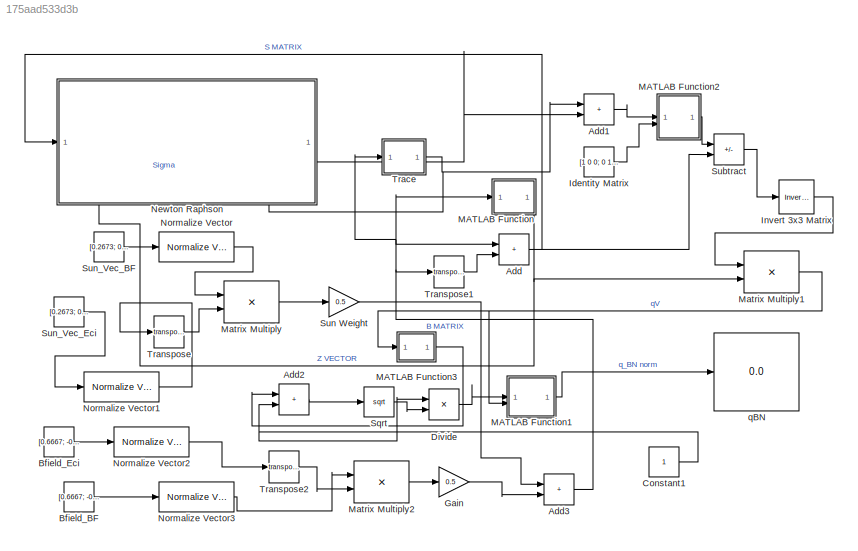
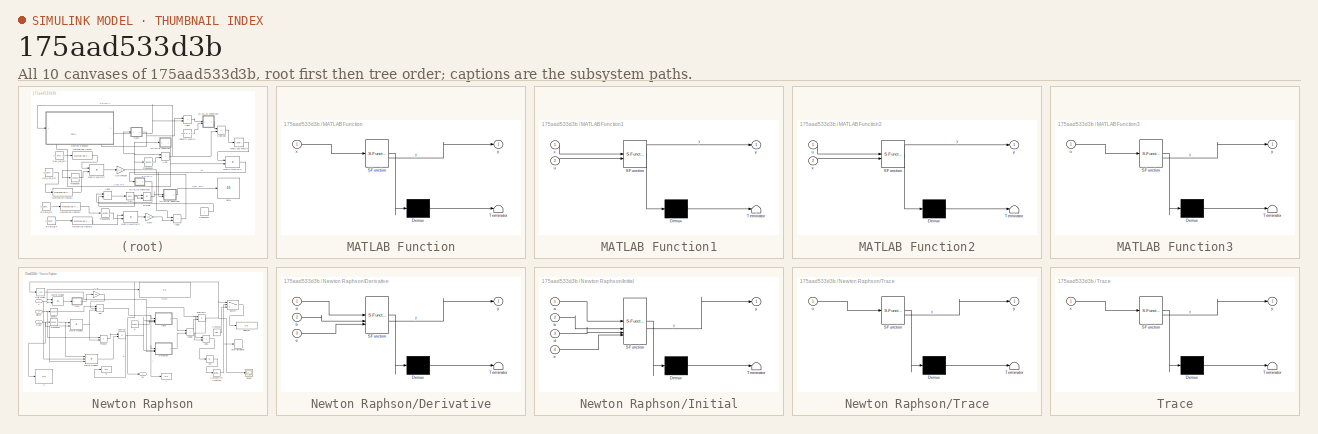
[diagram: thumbnail index - all 10 canvases of the model, root first then tree order]
MODEL slx_175aad533d3b
KIND model
CONFIG AbsTol = auto
CONFIG EnableMultiTasking = off
CONFIG FixedStep = auto
CONFIG MaxStep = auto
CONFIG MinStep = auto
CONFIG RelTol = 1e-3
CONFIG SampleTimeConstraint = Unconstrained
CONFIG SolverName = VariableStepAuto
CONFIG StartTime = 0.0
CONFIG StopTime = 100
BLOCK [Sum] Add
  IconShape = rectangular
BLOCK [Sum] Add1
  IconShape = rectangular
BLOCK [Sum] Add2
  IconShape = rectangular
BLOCK [Sum] Add3
  IconShape = rectangular
BLOCK [Constant] Bfield_BF
  Value = [0.6667; -0.3333; 0.6667]
BLOCK [Constant] Bfield_Eci
  Value = [0.6667; -0.3333; 0.6667]
BLOCK [Constant] Constant1
BLOCK [Product] Divide
  Inputs = */
BLOCK [Gain] Gain
  Gain = 0.5
BLOCK [Constant] Identity Matrix
  Value = [1 0 0; 0 1 0; 0 0 1]
BLOCK [Reference] Invert 3x3 Matrix  REF=aerolibutil/Invert 
3x3 Matrix
  SourceBlock = aerolibutil/Invert \n3x3 Matrix
  SourceType = Invert 3x3 Matrix
BLOCK [SubSystem] MATLAB Function
  ErrorFcn = Stateflow.Translate.translate
  PermitHierarchicalResolution = ExplicitOnly
  SFBlockType = MATLAB Function
  TreatAsAtomicUnit = on
BLOCK [Demux] MATLAB Function/ Demux 
  Outputs = 1
BLOCK [S-Function] MATLAB Function/ SFunction 
  EnableBusSupport = on
  FunctionName = sf_sfun
  PortCounts = [1 2]
  SFcnIsStateOwnerBlock = off
  SFunctionDeploymentMode = off
  Tag = Stateflow S-Function 1
BLOCK [Terminator] MATLAB Function/ Terminator 
BLOCK [Inport] MATLAB Function/x
BLOCK [Outport] MATLAB Function/y
BLOCK [SubSystem] MATLAB Function1
  ErrorFcn = Stateflow.Translate.translate
  PermitHierarchicalResolution = ExplicitOnly
  SFBlockType = MATLAB Function
  TreatAsAtomicUnit = on
BLOCK [Demux] MATLAB Function1/ Demux 
  Outputs = 1
BLOCK [S-Function] MATLAB Function1/ SFunction 
  EnableBusSupport = on
  FunctionName = sf_sfun
  PortCounts = [2 2]
  SFcnIsStateOwnerBlock = off
  SFunctionDeploymentMode = off
  Tag = Stateflow S-Function 3
BLOCK [Terminator] MATLAB Function1/ Terminator 
BLOCK [Inport] MATLAB Function1/u
  Port = 2
BLOCK [Inport] MATLAB Function1/x
BLOCK [Outport] MATLAB Function1/y
BLOCK [SubSystem] MATLAB Function2
  ErrorFcn = Stateflow.Translate.translate
  PermitHierarchicalResolution = ExplicitOnly
  SFBlockType = MATLAB Function
  TreatAsAtomicUnit = on
BLOCK [Demux] MATLAB Function2/ Demux 
  Outputs = 1
BLOCK [S-Function] MATLAB Function2/ SFunction 
  EnableBusSupport = on
  FunctionName = sf_sfun
  PortCounts = [2 2]
  SFcnIsStateOwnerBlock = off
  SFunctionDeploymentMode = off
  Tag = Stateflow S-Function 7
BLOCK [Terminator] MATLAB Function2/ Terminator 
BLOCK [Inport] MATLAB Function2/u
BLOCK [Inport] MATLAB Function2/x
  Port = 2
BLOCK [Outport] MATLAB Function2/y
BLOCK [SubSystem] MATLAB Function3
  ErrorFcn = Stateflow.Translate.translate
  PermitHierarchicalResolution = ExplicitOnly
  SFBlockType = MATLAB Function
  TreatAsAtomicUnit = on
BLOCK [Demux] MATLAB Function3/ Demux 
  Outputs = 1
BLOCK [S-Function] MATLAB Function3/ SFunction 
  EnableBusSupport = on
  FunctionName = sf_sfun
  PortCounts = [1 2]
  SFcnIsStateOwnerBlock = off
  SFunctionDeploymentMode = off
  Tag = Stateflow S-Function 8
BLOCK [Terminator] MATLAB Function3/ Terminator 
BLOCK [Inport] MATLAB Function3/u
BLOCK [Outport] MATLAB Function3/y
BLOCK [Product] Matrix Multiply
  Multiplication = Matrix(*)
BLOCK [Product] Matrix Multiply1
  Multiplication = Matrix(*)
BLOCK [Product] Matrix Multiply2
  Multiplication = Matrix(*)
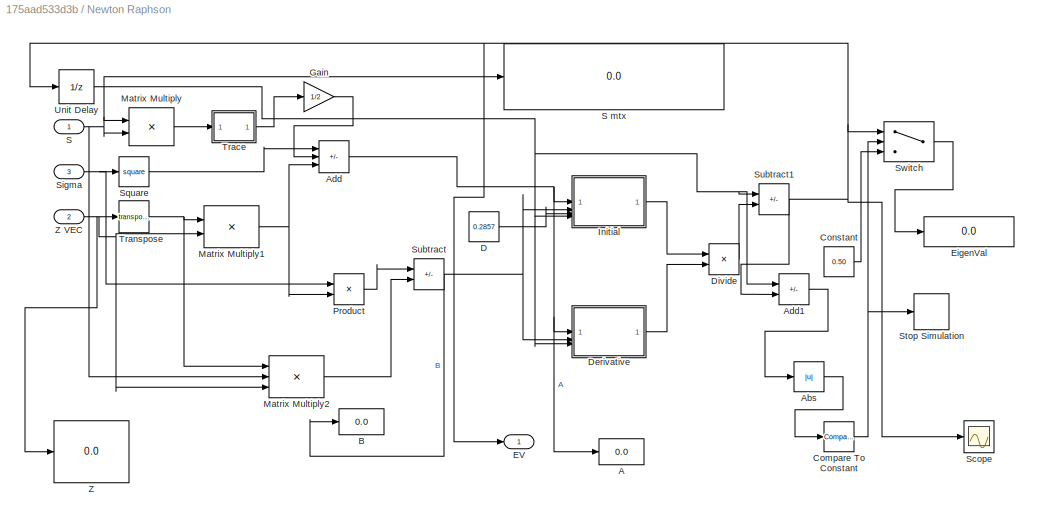
BLOCK [SubSystem] Newton Raphson
  PortSchema = {"entries":[{"content":{"sides":[{"content":{"connectorIds":["In1"]},"type":"ConnectorPlacement.EquallySpacedRectSide","uuid":"e2146f8d-34b9-49a4-aeaf-4a2b3a2e6e4f"},{"content":{"side":"RIGHT"},"type":"ConnectorPlacement.EquallySpacedRectSide","uuid":"5f94a399-f5bb-45cc-8dde-201b399d20f8"},{"content":{"side":"TOP"},"type":"ConnectorPlacement.EquallySpacedRectSide","uuid":"1c1d33a4-7a93-47a3-af10-d...<+360ch>
BLOCK [Display] Newton Raphson/A
  Decimation = 1
BLOCK [Abs] Newton Raphson/Abs
  SaturateOnIntegerOverflow = off
BLOCK [Sum] Newton Raphson/Add
  IconShape = rectangular
  Inputs = +-+
BLOCK [Sum] Newton Raphson/Add1
  IconShape = rectangular
  Inputs = +-
BLOCK [Display] Newton Raphson/B
  Decimation = 1
BLOCK [Reference] Newton Raphson/Compare To Constant  REF=simulink/Logic and Bit
Operations/Compare
To Constant
  SourceBlock = simulink/Logic and Bit\nOperations/Compare\nTo Constant
  SourceType = Compare To Constant
BLOCK [Constant] Newton Raphson/Constant
  Value = 0.50
BLOCK [Constant] Newton Raphson/D
  Value = 0.2857
BLOCK [SubSystem] Newton Raphson/Derivative
  ErrorFcn = Stateflow.Translate.translate
  PermitHierarchicalResolution = ExplicitOnly
  SFBlockType = MATLAB Function
  TreatAsAtomicUnit = on
BLOCK [Demux] Newton Raphson/Derivative/ Demux 
  Outputs = 1
BLOCK [S-Function] Newton Raphson/Derivative/ SFunction 
  EnableBusSupport = on
  FunctionName = sf_sfun
  PortCounts = [3 2]
  SFcnIsStateOwnerBlock = off
  SFunctionDeploymentMode = off
  Tag = Stateflow S-Function 6
BLOCK [Terminator] Newton Raphson/Derivative/ Terminator 
BLOCK [Inport] Newton Raphson/Derivative/a
BLOCK [Inport] Newton Raphson/Derivative/b
  Port = 2
BLOCK [Inport] Newton Raphson/Derivative/e
  Port = 3
BLOCK [Outport] Newton Raphson/Derivative/y
BLOCK [Product] Newton Raphson/Divide
  Inputs = */
BLOCK [Outport] Newton Raphson/EV
BLOCK [Display] Newton Raphson/EigenVal
  Decimation = 1
BLOCK [Gain] Newton Raphson/Gain
  Gain = 1/2
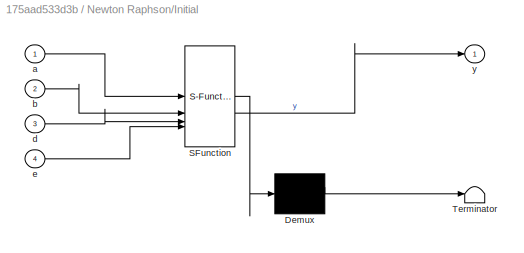
BLOCK [SubSystem] Newton Raphson/Initial
  ErrorFcn = Stateflow.Translate.translate
  PermitHierarchicalResolution = ExplicitOnly
  SFBlockType = MATLAB Function
  TreatAsAtomicUnit = on
BLOCK [Demux] Newton Raphson/Initial/ Demux 
  Outputs = 1
BLOCK [S-Function] Newton Raphson/Initial/ SFunction 
  EnableBusSupport = on
  FunctionName = sf_sfun
  PortCounts = [4 2]
  SFcnIsStateOwnerBlock = off
  SFunctionDeploymentMode = off
  Tag = Stateflow S-Function 5
BLOCK [Terminator] Newton Raphson/Initial/ Terminator 
BLOCK [Inport] Newton Raphson/Initial/a
BLOCK [Inport] Newton Raphson/Initial/b
  Port = 2
BLOCK [Inport] Newton Raphson/Initial/d
  Port = 3
BLOCK [Inport] Newton Raphson/Initial/e
  Port = 4
BLOCK [Outport] Newton Raphson/Initial/y
BLOCK [Product] Newton Raphson/Matrix Multiply
  Multiplication = Matrix(*)
BLOCK [Product] Newton Raphson/Matrix Multiply1
  Multiplication = Matrix(*)
BLOCK [Product] Newton Raphson/Matrix Multiply2
  Inputs = 3
  Multiplication = Matrix(*)
BLOCK [Product] Newton Raphson/Product
BLOCK [Inport] Newton Raphson/S
BLOCK [Display] Newton Raphson/S mtx
  Decimation = 1
BLOCK [Scope] Newton Raphson/Scope
  Floating = off
  NumInputPorts = 1
  ScopeSpecificationString = Simulink.scopes.TimeScopeBlockCfg('CurrentConfiguration', extmgr.ConfigurationSet(extmgr.Configuration('Core','General UI',true),extmgr.Configuration('Core','Source UI',true),extmgr.Configuration('Sources','WiredSimulink',true),extmgr.Configuration('Visuals','Time Domain',true,'SerializedDisplays',{struct('MinYLimReal','0.92259','MaxYLimReal','1.69885','YLabelReal','','MinYLimMag','0.92259','MaxYL...<+1438ch>
BLOCK [Inport] Newton Raphson/Sigma
  Port = 3
BLOCK [Math] Newton Raphson/Square
  Operator = square
BLOCK [Stop] Newton Raphson/Stop Simulation
BLOCK [Sum] Newton Raphson/Subtract
  IconShape = rectangular
  Inputs = +-
BLOCK [Sum] Newton Raphson/Subtract1
  IconShape = rectangular
  Inputs = +-
BLOCK [Switch] Newton Raphson/Switch
  Criteria = u2 > Threshold
  InputSameDT = off
  SaturateOnIntegerOverflow = off
BLOCK [SubSystem] Newton Raphson/Trace
  ErrorFcn = Stateflow.Translate.translate
  PermitHierarchicalResolution = ExplicitOnly
  SFBlockType = MATLAB Function
  TreatAsAtomicUnit = on
BLOCK [Demux] Newton Raphson/Trace/ Demux 
  Outputs = 1
BLOCK [S-Function] Newton Raphson/Trace/ SFunction 
  EnableBusSupport = on
  FunctionName = sf_sfun
  PortCounts = [1 2]
  SFcnIsStateOwnerBlock = off
  SFunctionDeploymentMode = off
  Tag = Stateflow S-Function 4
BLOCK [Terminator] Newton Raphson/Trace/ Terminator 
BLOCK [Inport] Newton Raphson/Trace/u
BLOCK [Outport] Newton Raphson/Trace/y
BLOCK [Math] Newton Raphson/Transpose
  Operator = transpose
BLOCK [UnitDelay] Newton Raphson/Unit Delay
  HasFrameUpgradeWarning = on
  InitialCondition = 2
  SampleTime = -1
BLOCK [Display] Newton Raphson/Z
  Decimation = 1
  Format = short_e
BLOCK [Inport] Newton Raphson/Z VEC
  Port = 2
BLOCK [Reference] Normalize Vector  REF=vrlib/Utilities/Normalize Vector
  SourceBlock = vrlib/Utilities/Normalize Vector
  SourceType = Normalize Vector
BLOCK [Reference] Normalize Vector1  REF=vrlib/Utilities/Normalize Vector
  SourceBlock = vrlib/Utilities/Normalize Vector
  SourceType = Normalize Vector
BLOCK [Reference] Normalize Vector2  REF=vrlib/Utilities/Normalize Vector
  SourceBlock = vrlib/Utilities/Normalize Vector
  SourceType = Normalize Vector
BLOCK [Reference] Normalize Vector3  REF=vrlib/Utilities/Normalize Vector
  SourceBlock = vrlib/Utilities/Normalize Vector
  SourceType = Normalize Vector
BLOCK [Sqrt] Sqrt
BLOCK [Sum] Subtract
  IconShape = rectangular
  Inputs = +-
BLOCK [Gain] Sun Weight
  Gain = 0.5
BLOCK [Constant] Sun_Vec_BF
  Value = [0.2673; 0.5345; 0.8018]
BLOCK [Constant] Sun_Vec_Eci
  Value = [0.2673; 0.5345; 0.8018]
BLOCK [SubSystem] Trace
  ErrorFcn = Stateflow.Translate.translate
  PermitHierarchicalResolution = ExplicitOnly
  SFBlockType = MATLAB Function
  TreatAsAtomicUnit = on
BLOCK [Demux] Trace/ Demux 
  Outputs = 1
BLOCK [S-Function] Trace/ SFunction 
  EnableBusSupport = on
  FunctionName = sf_sfun
  PortCounts = [1 2]
  SFcnIsStateOwnerBlock = off
  SFunctionDeploymentMode = off
  Tag = Stateflow S-Function 2
BLOCK [Terminator] Trace/ Terminator 
BLOCK [Inport] Trace/x
BLOCK [Outport] Trace/y
BLOCK [Math] Transpose
  Operator = transpose
BLOCK [Math] Transpose1
  Operator = transpose
BLOCK [Math] Transpose2
  Operator = transpose
BLOCK [Display] qBN
  Decimation = 1
  Format = short_e
LINE Add1:1 -> MATLAB Function2:1
LINE Add2:1 -> Sqrt:1
NET Add3:1 -> Add:1, MATLAB Function:1, Trace:1, Transpose1:1
NET Add:1 -> Newton Raphson:1, Subtract:2
LINE Bfield_BF:1 -> Normalize Vector3:1
LINE Bfield_Eci:1 -> Normalize Vector2:1
NET Constant1:1 -> Add2:2, Divide:1
LINE Divide:1 -> MATLAB Function1:1
LINE Gain:1 -> Add3:2
LINE Identity Matrix:1 -> MATLAB Function2:2
LINE Invert 3x3 Matrix:1 -> Matrix Multiply1:1
LINE MATLAB Function1:1 -> qBN:1
LINE MATLAB Function2:1 -> Subtract:1
LINE MATLAB Function3:1 -> Add2:1
NET MATLAB Function:1 -> Matrix Multiply1:2, Newton Raphson:2
NET Matrix Multiply1:1 -> MATLAB Function1:2, MATLAB Function3:1
LINE Matrix Multiply2:1 -> Gain:1
LINE Matrix Multiply:1 -> Sun Weight:1
LINE Newton Raphson/Abs:1 -> Newton Raphson/Compare To Constant:1
LINE Newton Raphson/Add1:1 -> Newton Raphson/Abs:1
NET Newton Raphson/Add:1 -> Newton Raphson/A:1, Newton Raphson/Derivative:1, Newton Raphson/Initial:1
NET Newton Raphson/Compare To Constant:1 -> Newton Raphson/Stop Simulation:1, Newton Raphson/Switch:2
LINE Newton Raphson/Constant:1 -> Newton Raphson/Switch:3
LINE Newton Raphson/D:1 -> Newton Raphson/Initial:3
LINE Newton Raphson/Derivative:1 -> Newton Raphson/Divide:2
LINE Newton Raphson/Divide:1 -> Newton Raphson/Subtract1:2
LINE Newton Raphson/Gain:1 -> Newton Raphson/Add:2
LINE Newton Raphson/Initial:1 -> Newton Raphson/Divide:1
NET Newton Raphson/Matrix Multiply1:1 -> Newton Raphson/Add:3, Newton Raphson/Product:2
LINE Newton Raphson/Matrix Multiply2:1 -> Newton Raphson/Subtract:2
LINE Newton Raphson/Matrix Multiply:1 -> Newton Raphson/Trace:1
LINE Newton Raphson/Product:1 -> Newton Raphson/Subtract:1
NET Newton Raphson/S:1 -> Newton Raphson/Matrix Multiply2:2, Newton Raphson/Matrix Multiply:1, Newton Raphson/Matrix Multiply:2, Newton Raphson/S mtx:1
NET Newton Raphson/Sigma:1 -> Newton Raphson/Product:1, Newton Raphson/Square:1
LINE Newton Raphson/Square:1 -> Newton Raphson/Add:1
NET Newton Raphson/Subtract1:1 -> Newton Raphson/Add1:2, Newton Raphson/EV:1, Newton Raphson/Scope:1, Newton Raphson/Switch:1, Newton Raphson/Unit Delay:1
NET Newton Raphson/Subtract:1 -> Newton Raphson/B:1, Newton Raphson/Derivative:2, Newton Raphson/Initial:2
LINE Newton Raphson/Switch:1 -> Newton Raphson/EigenVal:1
LINE Newton Raphson/Trace:1 -> Newton Raphson/Gain:1
NET Newton Raphson/Transpose:1 -> Newton Raphson/Matrix Multiply1:1, Newton Raphson/Matrix Multiply2:1
NET Newton Raphson/Unit Delay:1 -> Newton Raphson/Add1:1, Newton Raphson/Derivative:3, Newton Raphson/Initial:4, Newton Raphson/Subtract1:1
NET Newton Raphson/Z VEC:1 -> Newton Raphson/Matrix Multiply1:2, Newton Raphson/Matrix Multiply2:3, Newton Raphson/Transpose:1, Newton Raphson/Z:1
LINE Newton Raphson:1 -> Add1:2
LINE Normalize Vector1:1 -> Transpose:1
LINE Normalize Vector2:1 -> Transpose2:1
LINE Normalize Vector3:1 -> Matrix Multiply2:1
LINE Normalize Vector:1 -> Matrix Multiply:1
LINE Sqrt:1 -> Divide:2
LINE Subtract:1 -> Invert 3x3 Matrix:1
LINE Sun Weight:1 -> Add3:1
LINE Sun_Vec_BF:1 -> Normalize Vector:1
LINE Sun_Vec_Eci:1 -> Normalize Vector1:1
NET Trace:1 -> Add1:1, Newton Raphson:3
LINE Transpose1:1 -> Add:2
LINE Transpose2:1 -> Matrix Multiply2:2
LINE Transpose:1 -> Matrix Multiply:2
note: NET lines group one-source signal fan-out (src -> all destinations, sorted); 1:1 wires keep LINE
CHART MATLAB Function states=1 transitions=1
  STATE_LABEL 'eML_blk_kernel()'
  STATE_LABEL 'SCRIPT:\nfunction y = fcn(x)\ny=ones(3,1);\ny(1)=x(2,3)-x(3,2);\ny(2)=x(3,1)-x(1,3);\ny(3)=x(1,2)-x(2,1);\n'
CHART Trace states=1 transitions=1
  STATE_LABEL 'eML_blk_kernel()'
  STATE_LABEL 'SCRIPT:\nfunction y = fcn(x)\n\ny=x(1,1)+x(2,2)+x(3,3);\n'
CHART MATLAB Function1 states=1 transitions=1
  STATE_LABEL 'eML_blk_kernel()'
  STATE_LABEL 'SCRIPT:\nfunction y = fcn(x,u)\n\n%x is a scalar, u is the 3x1 vector\ny=ones(4,1);\ny=x*[1;u];\n'
CHART Newton Raphson/Trace states=1 transitions=1
  STATE_LABEL 'eML_blk_kernel()'
  STATE_LABEL 'SCRIPT:\nfunction y = fcn(u)\n\ny = trace(u);\n'
CHART Newton Raphson/Initial states=1 transitions=1
  STATE_LABEL 'eML_blk_kernel()'
  STATE_LABEL 'SCRIPT:\nfunction y = fcn(a,b,d,e)\n\ny = e^4 - 1*e^3 + a*e^2 - b*e + d;\n'
CHART Newton Raphson/Derivative states=1 transitions=1
  STATE_LABEL 'eML_blk_kernel()'
  STATE_LABEL 'SCRIPT:\nfunction y = fcn(a,b,e)\n\ny = 4*e^3 - 3*1*e^2 + 2*a*e - b;\n'
CHART MATLAB Function2 states=1 transitions=1
  STATE_LABEL 'eML_blk_kernel()'
  STATE_LABEL 'SCRIPT:\nfunction y = fcn(u,x)\n\ny=ones(3,3);\ny = u*x;\n'
CHART MATLAB Function3 states=1 transitions=1
  STATE_LABEL 'eML_blk_kernel()'
  STATE_LABEL 'SCRIPT:\nfunction y = fcn(u)\n\ny = (norm(u))^2;\n'
CHART  states=0 transitions=0
CHART  states=0 transitions=0
CHART  states=0 transitions=0
CHART  states=0 transitions=0
CHART  states=0 transitions=0
CHART  states=0 transitions=0
CHART  states=0 transitions=0
CHART  states=0 transitions=0
